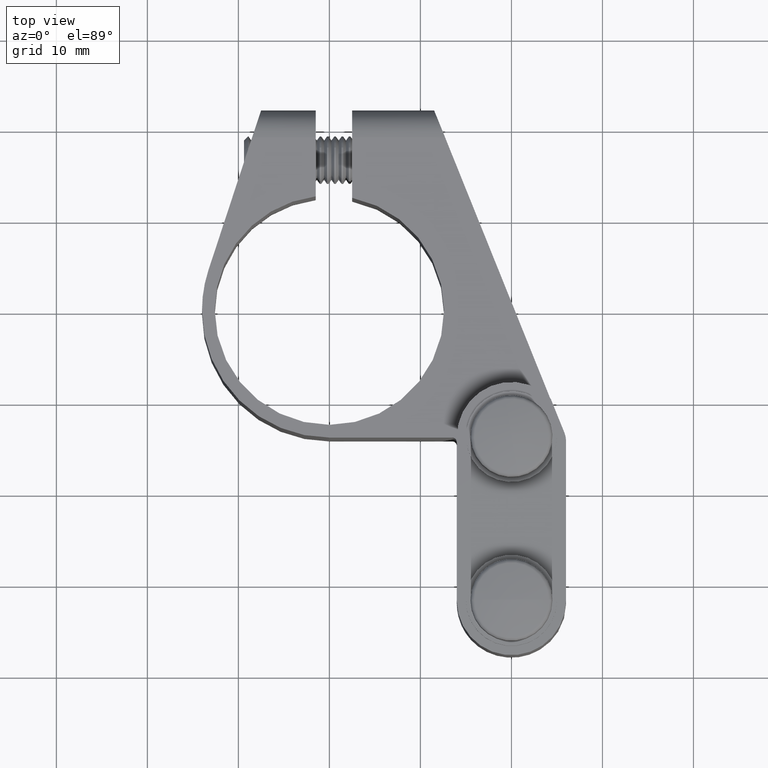
[diagram: clean part render]
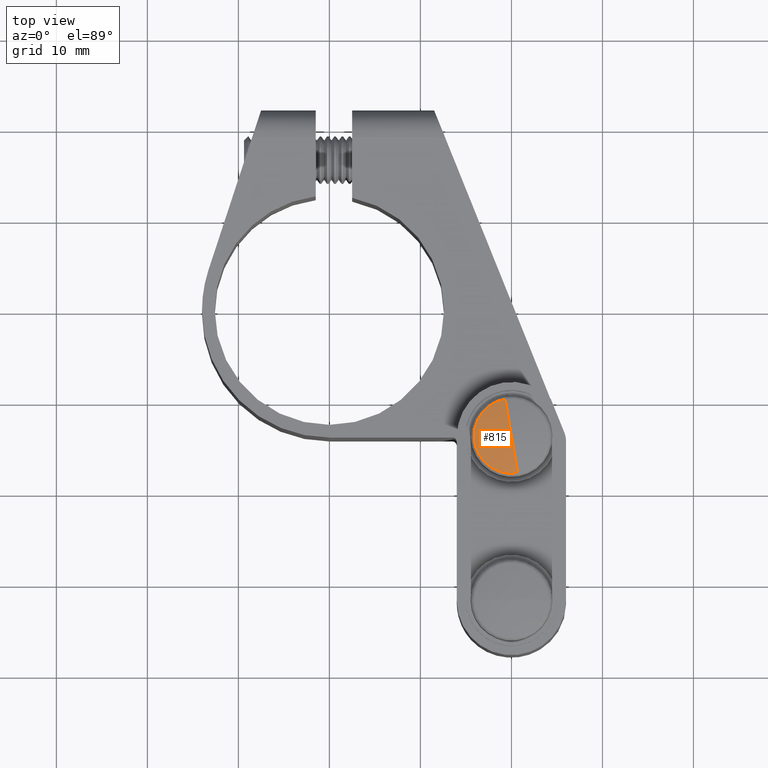
[diagram: same view with one face highlighted and labeled with its STEP entity id]
A machine part, top view. The second image highlights one B-rep face of the part: STEP entity #815.
In plain terms, the highlighted spherical surface has radius 20 mm.
Its self-contained STEP definition (entity closure, byte-faithful):
#815 = ADVANCED_FACE ( 'NONE', ( #3775 ), #12272, .T. ) ;
#944 = ORIENTED_EDGE ( 'NONE', *, *, #3792, .T. ) ;
#1492 = AXIS2_PLACEMENT_3D ( 'NONE', #13943, #1589, #4727 ) ;
#1589 = DIRECTION ( 'NONE',  ( 0.0000000000000000000, 0.0000000000000000000, -1.000000000000000000 ) ) ;
#2168 = VERTEX_POINT ( 'NONE', #9027 ) ;
#2308 = CIRCLE ( 'NONE', #4919, 4.102564102564103100 ) ;
#2651 = DIRECTION ( 'NONE',  ( 1.000000000000000000, 0.0000000000000000000, 0.0000000000000000000 ) ) ;
#3125 = ORIENTED_EDGE ( 'NONE', *, *, #19756, .T. ) ;
#3531 = DIRECTION ( 'NONE',  ( 1.487415552276713300E-017, 1.000000000000000000, -0.0000000000000000000 ) ) ;
#3775 = FACE_OUTER_BOUND ( 'NONE', #15872, .T. ) ;
#3792 = EDGE_CURVE ( 'NONE', #13457, #4074, #19939, .T. ) ;
#4074 = VERTEX_POINT ( 'NONE', #18028 ) ;
#4727 = DIRECTION ( 'NONE',  ( 1.000000000000000000, 0.0000000000000000000, 0.0000000000000000000 ) ) ;
#4919 = AXIS2_PLACEMENT_3D ( 'NONE', #12698, #3531, #5044 ) ;
#5044 = DIRECTION ( 'NONE',  ( 1.000000000000000000, 0.0000000000000000000, 0.0000000000000000000 ) ) ;
#5649 = CARTESIAN_POINT ( 'NONE',  ( -4.102564102564097800, 11.57470223999211700, -5.024191996501958400E-016 ) ) ;
#5963 = CIRCLE ( 'NONE', #10466, 20.00000000000000400 ) ;
#9027 = CARTESIAN_POINT ( 'NONE',  ( 4.102564102564102200, 11.57470223999211700, 0.0000000000000000000 ) ) ;
#9251 = CARTESIAN_POINT ( 'NONE',  ( 2.449293598294706500E-015, -8.000000000000005300, 0.0000000000000000000 ) ) ;
#10365 = DIRECTION ( 'NONE',  ( 0.0000000000000000000, 0.0000000000000000000, 1.000000000000000000 ) ) ;
#10466 = AXIS2_PLACEMENT_3D ( 'NONE', #15055, #10365, #2651 ) ;
#12141 = ORIENTED_EDGE ( 'NONE', *, *, #19965, .F. ) ;
#12272 = SPHERICAL_SURFACE ( 'NONE', #1492, 20.00000000000000400 ) ;
#12698 = CARTESIAN_POINT ( 'NONE',  ( 2.740450763724207700E-015, 11.57470223999211700, 0.0000000000000000000 ) ) ;
#13457 = VERTEX_POINT ( 'NONE', #5649 ) ;
#13943 = CARTESIAN_POINT ( 'NONE',  ( 2.449293598294706500E-015, -8.000000000000005300, 0.0000000000000000000 ) ) ;
#14553 = AXIS2_PLACEMENT_3D ( 'NONE', #9251, #20045, #15452 ) ;
#15055 = CARTESIAN_POINT ( 'NONE',  ( 2.449293598294706500E-015, -8.000000000000005300, 0.0000000000000000000 ) ) ;
#15452 = DIRECTION ( 'NONE',  ( -1.000000000000000000, 0.0000000000000000000, -1.224646799147353200E-016 ) ) ;
#15872 = EDGE_LOOP ( 'NONE', ( #3125, #944, #12141 ) ) ;
#18028 = CARTESIAN_POINT ( 'NONE',  ( 3.971423507897402800E-015, 11.99999999999999800, 0.0000000000000000000 ) ) ;
#19756 = EDGE_CURVE ( 'NONE', #2168, #13457, #2308, .T. ) ;
#19939 = CIRCLE ( 'NONE', #14553, 20.00000000000000400 ) ;
#19965 = EDGE_CURVE ( 'NONE', #2168, #4074, #5963, .T. ) ;
#20045 = DIRECTION ( 'NONE',  ( 1.224646799147353200E-016, -1.821558695097669500E-033, -1.000000000000000000 ) ) ;